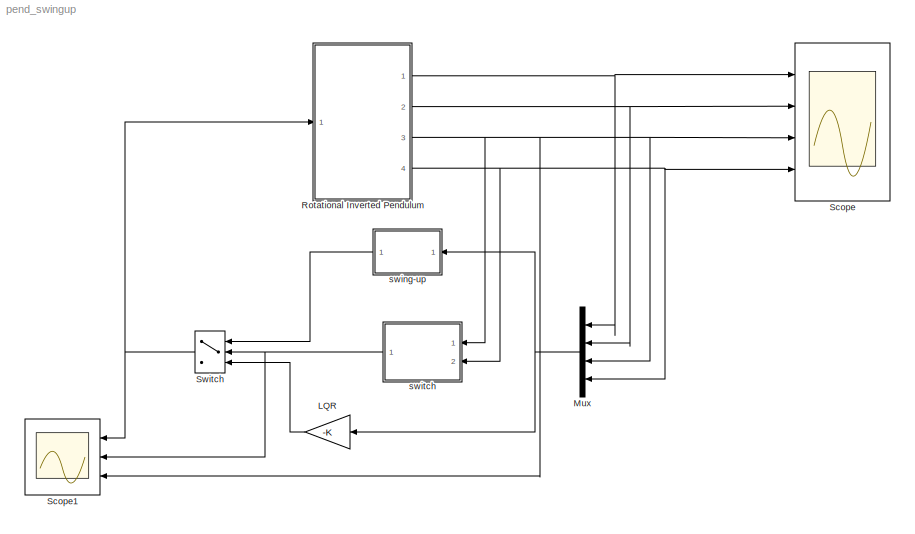
MODEL pend_swingup
KIND model
BLOCK [Gain] LQR
  Gain = -K
  Multiplication = Matrix(K*u)
  OutDataTypeStr = Inherit: Inherit via internal rule
  ParamDataTypeStr = Inherit: Inherit via internal rule
  SID = 1
  SaturateOnIntegerOverflow = off
BLOCK [Mux] Mux
  DisplayOption = bar
  Ports = [4, 1]
  SID = 2
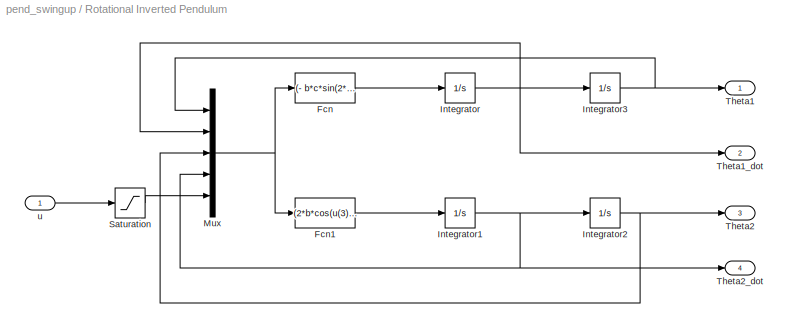
BLOCK [SubSystem] Rotational Inverted Pendulum
  Ports = [1, 4]
  RequestExecContextInheritance = off
  SID = 5
BLOCK [Fcn] Rotational Inverted Pendulum/Fcn
  Expr = (- b*c*sin(2* u(3))*cos(u(3))* u(2)^2 + 2*c*f*sin(2* u(3))* u(2)* u(4) + 2*d*f* u(2) + 2*b*f*sin(u(3))* u(4)^2 + 2*b*c2*cos(u(3))* u(4) - 2*e*f* u(5)- 2*b*h*cos(u(3))*sin(u(3)))/(b^2*cos(2* u(3)) - c*f - 2*a*f + b^2 + c*f*cos(2* u(3)))
  SID = 7
BLOCK [Fcn] Rotational Inverted Pendulum/Fcn1
  Expr = (2*b*cos(u(3))*(b*sin(u(3))*u(4)^2 + c*u(2)*sin(2*u(3))*u(4) + d*u(2) - e*u(5)))/(b^2*cos(2*u(3)) - c*f - 2*a*f + b^2 + c*f*cos(2*u(3))) - (((c*sin(2*u(3))*u(2)^2)/2 - c2*u(4) + h*sin(u(3)))*(2*a + c - c*cos(2*u(3))))/(b^2*cos(2*u(3)) - c*f - 2*a*f + b^2 + c*f*cos(2*u(3)))
  SID = 8
BLOCK [Integrator] Rotational Inverted Pendulum/Integrator
  Ports = [1, 1]
  SID = 9
BLOCK [Integrator] Rotational Inverted Pendulum/Integrator1
  InitialCondition = 0.1
  Ports = [1, 1]
  SID = 10
BLOCK [Integrator] Rotational Inverted Pendulum/Integrator2
  InitialCondition = -pi
  Ports = [1, 1]
  SID = 11
BLOCK [Integrator] Rotational Inverted Pendulum/Integrator3
  Ports = [1, 1]
  SID = 12
BLOCK [Mux] Rotational Inverted Pendulum/Mux
  DisplayOption = bar
  Inputs = 5
  Ports = [5, 1]
  SID = 13
BLOCK [Saturate] Rotational Inverted Pendulum/Saturation
  InputPortMap = u0
  LowerLimit = -25
  Ports = [1, 1]
  SID = 14
  UpperLimit = 25
BLOCK [Outport] Rotational Inverted Pendulum/Theta1
  IconDisplay = Port number
  SID = 15
BLOCK [Outport] Rotational Inverted Pendulum/Theta1_dot
  IconDisplay = Port number
  Port = 2
  SID = 16
BLOCK [Outport] Rotational Inverted Pendulum/Theta2
  IconDisplay = Port number
  Port = 3
  SID = 17
BLOCK [Outport] Rotational Inverted Pendulum/Theta2_dot
  IconDisplay = Port number
  Port = 4
  SID = 18
BLOCK [Inport] Rotational Inverted Pendulum/u
  IconDisplay = Port number
  SID = 6
BLOCK [Scope] Scope
  Floating = off
  NumInputPorts = 4
  Ports = [4]
  SID = 3
  ScopeSpecificationString = Simulink.scopes.TimeScopeBlockCfg('CurrentConfiguration', extmgr.ConfigurationSet(extmgr.Configuration('Core','General UI',true),extmgr.Configuration('Core','Source UI',true),extmgr.Configuration('Sources','WiredSimulink',true,'DataLogging',true,'DataLoggingSaveFormat','StructureWithTime','DataLoggingLimitDataPoints',true,'DataLoggingDecimation','1','DataLoggingDecimateData',true),extmgr.Configura...<+3690ch>
BLOCK [Scope] Scope1
  Floating = off
  NumInputPorts = 3
  Ports = [3]
  SID = 4
  ScopeSpecificationString = C++SS(StrPVP('Location','[536, 602, 1093, 1246]'),StrPVP('Open','off'),MxPVP('AxesTitles',53,'struct(''axes1'',''%<SignalLabel>'',''axes2'',''%<SignalLabel>'',''axes3'',''%<SignalLabel>'')'),StrPVP('YMin','-5~-5~-5'),StrPVP('YMax','5~5~5'),StrPVP('SaveToWorkspace','on'),StrPVP('SaveName','data3'),StrPVP('DataFormat','StructureWithTime'),StrPVP('LimitDataPoints','off'),StrPVP('BlockParamSampleTime'...<+69ch>
BLOCK [Switch] Switch
  InputSameDT = off
  SID = 19
  SaturateOnIntegerOverflow = off
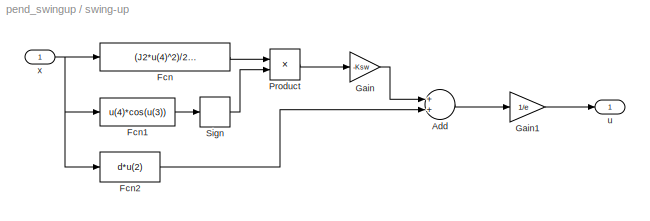
BLOCK [SubSystem] swing-up
  Ports = [1, 1]
  RequestExecContextInheritance = off
  SID = 20
BLOCK [Sum] swing-up/Add
  InputSameDT = off
  OutDataTypeStr = Inherit: Inherit via internal rule
  Ports = [2, 1]
  SID = 22
  SaturateOnIntegerOverflow = off
BLOCK [Fcn] swing-up/Fcn
  Expr = (J2*u(4)^2)/2+h*(cos(u(3))-1)
  SID = 23
BLOCK [Fcn] swing-up/Fcn1
  Expr = u(4)*cos(u(3))
  SID = 24
BLOCK [Fcn] swing-up/Fcn2
  Expr = d*u(2)
  SID = 25
BLOCK [Gain] swing-up/Gain
  Gain = -Ksw
  OutDataTypeStr = Inherit: Inherit via internal rule
  ParamDataTypeStr = Inherit: Inherit via internal rule
  SID = 26
  SaturateOnIntegerOverflow = off
BLOCK [Gain] swing-up/Gain1
  Gain = 1/e
  OutDataTypeStr = Inherit: Inherit via internal rule
  ParamDataTypeStr = Inherit: Inherit via internal rule
  SID = 27
  SaturateOnIntegerOverflow = off
BLOCK [Product] swing-up/Product
  InputSameDT = off
  OutDataTypeStr = Inherit: Inherit via internal rule
  Ports = [2, 1]
  SID = 28
  SaturateOnIntegerOverflow = off
BLOCK [Signum] swing-up/Sign
  SID = 29
BLOCK [Outport] swing-up/u
  IconDisplay = Port number
  SID = 30
BLOCK [Inport] swing-up/x
  IconDisplay = Port number
  SID = 21
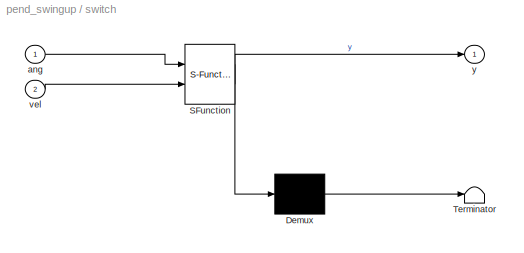
BLOCK [SubSystem] switch
  ErrorFcn = Stateflow.Translate.translate
  PermitHierarchicalResolution = ExplicitOnly
  Ports = [2, 1]
  RequestExecContextInheritance = off
  SFBlockType = MATLAB Function
  SID = 31
  TreatAsAtomicUnit = on
BLOCK [Demux] switch/ Demux 
  Outputs = 1
  Ports = [1, 1]
  SID = 31::12
BLOCK [S-Function] switch/ SFunction 
  EnableBusSupport = on
  FunctionName = sf_sfun
  PortCounts = [2 2]
  Ports = [2, 2]
  SFcnIsStateOwnerBlock = off
  SFunctionDeploymentMode = off
  SID = 31::11
  Tag = Stateflow S-Function pend_swingup 2
BLOCK [Terminator] switch/ Terminator 
  SID = 31::13
BLOCK [Inport] switch/ang
  IconDisplay = Port number
  SID = 31::1
BLOCK [Inport] switch/vel
  IconDisplay = Port number
  Port = 2
  SID = 31::2
BLOCK [Outport] switch/y
  IconDisplay = Port number
  SID = 31::6
LINE LQR:1 -> Switch:3
NET Mux:1 -> LQR:1, swing-up:1
LINE Rotational Inverted Pendulum/Fcn1:1 -> Rotational Inverted Pendulum/Integrator1:1
LINE Rotational Inverted Pendulum/Fcn:1 -> Rotational Inverted Pendulum/Integrator:1
NET Rotational Inverted Pendulum/Integrator1:1 -> Rotational Inverted Pendulum/Integrator2:1, Rotational Inverted Pendulum/Mux:4, Rotational Inverted Pendulum/Theta2_dot:1
NET Rotational Inverted Pendulum/Integrator2:1 -> Rotational Inverted Pendulum/Mux:3, Rotational Inverted Pendulum/Theta2:1
NET Rotational Inverted Pendulum/Integrator3:1 -> Rotational Inverted Pendulum/Mux:1, Rotational Inverted Pendulum/Theta1:1
NET Rotational Inverted Pendulum/Integrator:1 -> Rotational Inverted Pendulum/Integrator3:1, Rotational Inverted Pendulum/Mux:2, Rotational Inverted Pendulum/Theta1_dot:1
NET Rotational Inverted Pendulum/Mux:1 -> Rotational Inverted Pendulum/Fcn1:1, Rotational Inverted Pendulum/Fcn:1
LINE Rotational Inverted Pendulum/Saturation:1 -> Rotational Inverted Pendulum/Mux:5
LINE Rotational Inverted Pendulum/u:1 -> Rotational Inverted Pendulum/Saturation:1
NET Rotational Inverted Pendulum:1 -> Mux:1, Scope:1
NET Rotational Inverted Pendulum:2 -> Mux:2, Scope:2
NET Rotational Inverted Pendulum:3 -> Mux:3, Scope1:3, Scope:3, switch:1
NET Rotational Inverted Pendulum:4 -> Mux:4, Scope:4, switch:2
NET Switch:1 -> Rotational Inverted Pendulum:1, Scope1:1
LINE swing-up/Add:1 -> swing-up/Gain1:1
LINE swing-up/Fcn1:1 -> swing-up/Sign:1
LINE swing-up/Fcn2:1 -> swing-up/Add:2
LINE swing-up/Fcn:1 -> swing-up/Product:1
LINE swing-up/Gain1:1 -> swing-up/u:1
LINE swing-up/Gain:1 -> swing-up/Add:1
LINE swing-up/Product:1 -> swing-up/Gain:1
LINE swing-up/Sign:1 -> swing-up/Product:2
NET swing-up/x:1 -> swing-up/Fcn1:1, swing-up/Fcn2:1, swing-up/Fcn:1
LINE swing-up:1 -> Switch:1
LINE switch/ Demux :1 -> switch/ Terminator :1
LINE switch/ SFunction :1 -> switch/ Demux :1
LINE switch/ SFunction :2 -> switch/y:1
LINE switch/ang:1 -> switch/ SFunction :1
LINE switch/vel:1 -> switch/ SFunction :2
NET switch:1 -> Scope1:2, Switch:2
note: NET lines group one-source signal fan-out (src -> all destinations, sorted); 1:1 wires keep LINE
CHART switch states=1 transitions=1
  STATE_LABEL 'eML_blk_kernel()'
